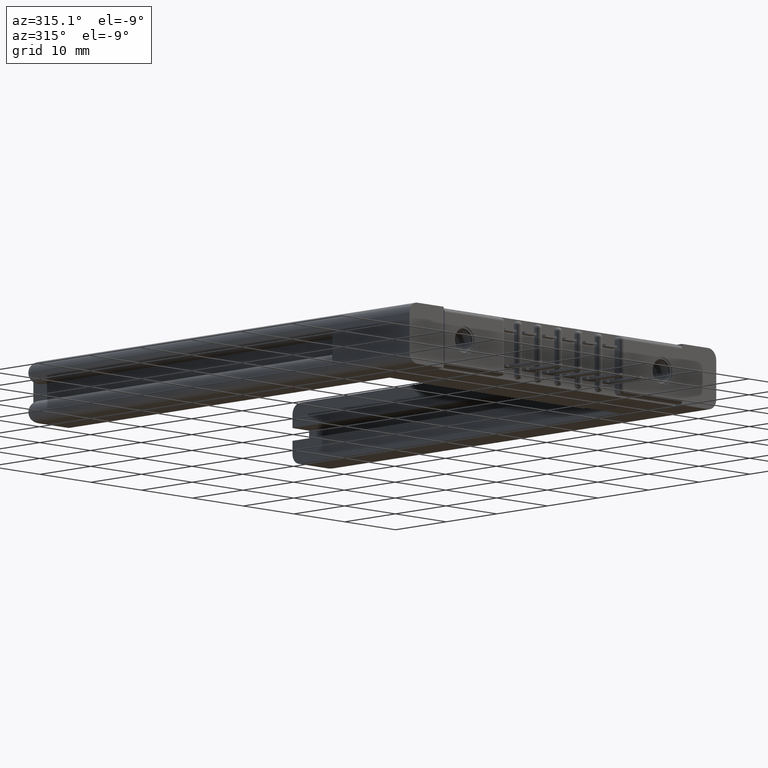
[diagram: clean part render]
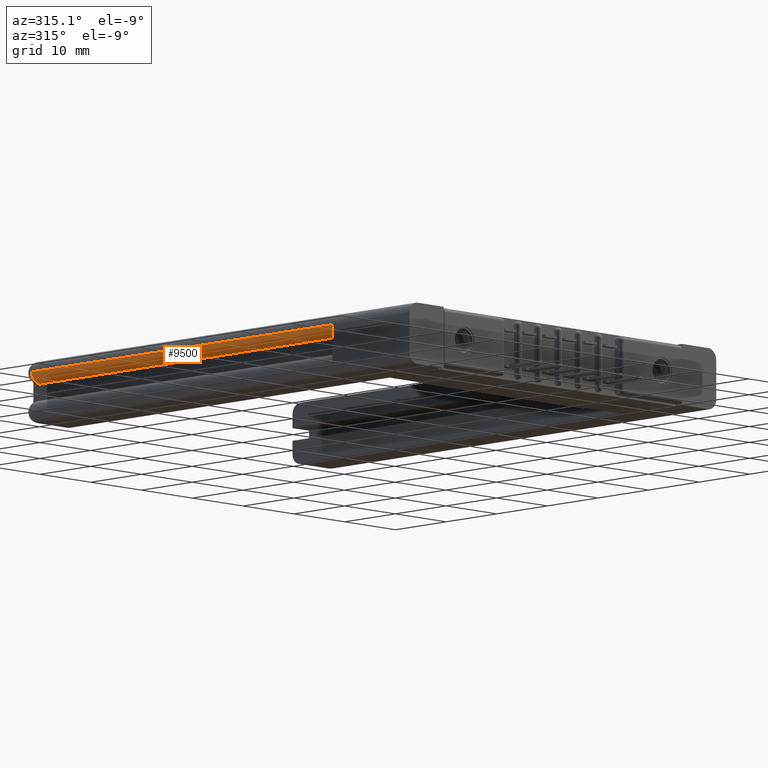
[diagram: same view with one face highlighted and labeled with its STEP entity id]
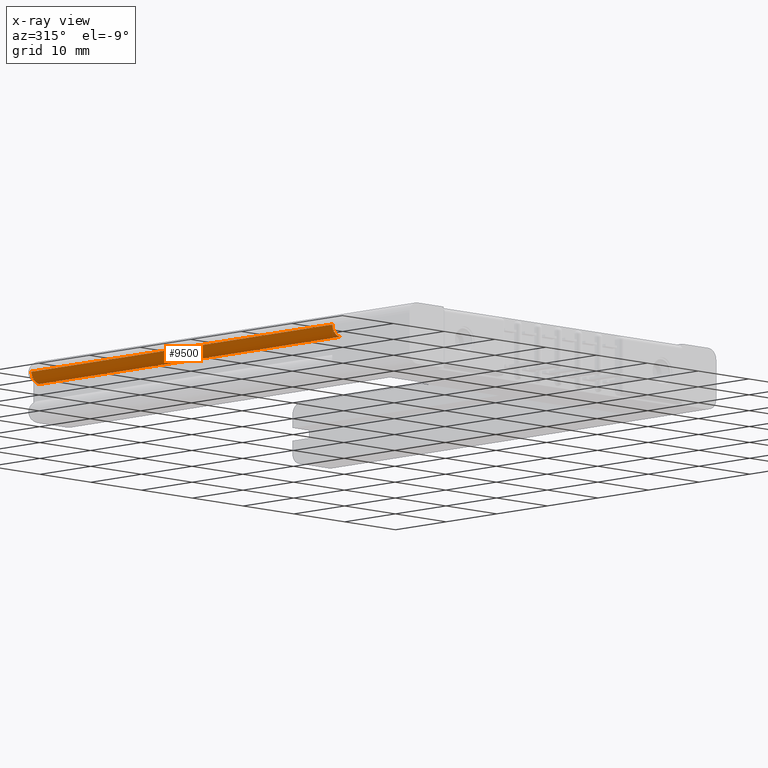
[diagram: x-ray of the same camera — body ghosted, the highlighted face saturated]
A machine part, auxiliary view. The second image highlights one B-rep face of the part: STEP entity #9500.
The next image is the same camera in x-ray: the body ghosted, the highlighted face saturated — about 0% of this face is hidden behind the body in this view.
In plain terms, the highlighted cylindrical surface (edge-blend (fillet) strip) has radius 1.5621 mm, axis along (-0, -1, 0).
Its self-contained STEP definition (entity closure, byte-faithful):
#558 = DIRECTION ( 'NONE',  ( -7.120336040201873200E-016, -1.000000000000000000, 2.334284690065040000E-016 ) ) ;
#828 = LINE ( 'NONE', #5922, #12225 ) ;
#1685 = VERTEX_POINT ( 'NONE', #3652 ) ;
#1716 = ORIENTED_EDGE ( 'NONE', *, *, #10716, .F. ) ;
#1783 = CARTESIAN_POINT ( 'NONE',  ( 0.06150000000000370400, 2.940000000000007100, -0.06100000000000110200 ) ) ;
#2327 = DIRECTION ( 'NONE',  ( -7.120336040201873200E-016, -1.000000000000000000, 2.263142815230032500E-016 ) ) ;
#2368 = DIRECTION ( 'NONE',  ( 0.0000000000000000000, 0.0000000000000000000, -1.000000000000000000 ) ) ;
#2819 = LINE ( 'NONE', #10464, #9701 ) ;
#2923 = ORIENTED_EDGE ( 'NONE', *, *, #6133, .T. ) ;
#3306 = CARTESIAN_POINT ( 'NONE',  ( 0.06149796744608740400, 0.6000000000000002000, -0.06100000000000069300 ) ) ;
#3605 = VERTEX_POINT ( 'NONE', #9122 ) ;
#3652 = CARTESIAN_POINT ( 'NONE',  ( 0.06149796744608740400, 0.6000000000000002000, -0.1225000000000015000 ) ) ;
#4094 = CYLINDRICAL_SURFACE ( 'NONE', #12643, 0.06150000000000035300 ) ;
#4416 = AXIS2_PLACEMENT_3D ( 'NONE', #1783, #10761, #11607 ) ;
#4421 = CARTESIAN_POINT ( 'NONE',  ( 0.06150000000000015200, 0.6000000000000002000, -0.06100000000000069300 ) ) ;
#4695 = CIRCLE ( 'NONE', #4416, 0.06150000000000035300 ) ;
#4729 = FACE_OUTER_BOUND ( 'NONE', #9295, .T. ) ;
#4804 = CARTESIAN_POINT ( 'NONE',  ( 0.0000000000000000000, 0.5999999999999998700, -0.06150000000000042200 ) ) ;
#5231 = DIRECTION ( 'NONE',  ( 0.0000000000000000000, 0.0000000000000000000, -1.000000000000000000 ) ) ;
#5922 = CARTESIAN_POINT ( 'NONE',  ( 0.06149796744608740400, 0.6000000000000002000, -0.1225000000000015700 ) ) ;
#6133 = EDGE_CURVE ( 'NONE', #7142, #3605, #4695, .T. ) ;
#6301 = AXIS2_PLACEMENT_3D ( 'NONE', #3306, #7358, #5231 ) ;
#6957 = DIRECTION ( 'NONE',  ( 7.120336040201873200E-016, 1.000000000000000000, -2.263142815230032500E-016 ) ) ;
#7142 = VERTEX_POINT ( 'NONE', #8651 ) ;
#7358 = DIRECTION ( 'NONE',  ( -7.120336040201874200E-016, -1.000000000000000000, 2.334284690065040000E-016 ) ) ;
#8651 = CARTESIAN_POINT ( 'NONE',  ( 2.032419574938677500E-006, 2.940000000000007100, -0.06149998347626495200 ) ) ;
#9082 = CIRCLE ( 'NONE', #6301, 0.06150000000000035300 ) ;
#9122 = CARTESIAN_POINT ( 'NONE',  ( 0.06149796744609068600, 2.940000000000007100, -0.1225000000000015900 ) ) ;
#9295 = EDGE_LOOP ( 'NONE', ( #11399, #2923, #12770, #1716 ) ) ;
#9328 = EDGE_CURVE ( 'NONE', #1685, #3605, #828, .T. ) ;
#9500 = ADVANCED_FACE ( 'NONE', ( #4729 ), #4094, .T. ) ;
#9701 = VECTOR ( 'NONE', #558, 39.37007874015748100 ) ;
#10464 = CARTESIAN_POINT ( 'NONE',  ( 3.551402391763542400E-015, 3.000000000000006700, -0.06150000000000131100 ) ) ;
#10716 = EDGE_CURVE ( 'NONE', #11784, #1685, #9082, .T. ) ;
#10761 = DIRECTION ( 'NONE',  ( -7.120336040201873200E-016, -1.000000000000000000, 2.334284690065040000E-016 ) ) ;
#10837 = EDGE_CURVE ( 'NONE', #7142, #11784, #2819, .T. ) ;
#11399 = ORIENTED_EDGE ( 'NONE', *, *, #10837, .F. ) ;
#11607 = DIRECTION ( 'NONE',  ( 0.0000000000000000000, 0.0000000000000000000, 1.000000000000000000 ) ) ;
#11784 = VERTEX_POINT ( 'NONE', #4804 ) ;
#12225 = VECTOR ( 'NONE', #6957, 39.37007874015748100 ) ;
#12643 = AXIS2_PLACEMENT_3D ( 'NONE', #4421, #2327, #2368 ) ;
#12770 = ORIENTED_EDGE ( 'NONE', *, *, #9328, .F. ) ;